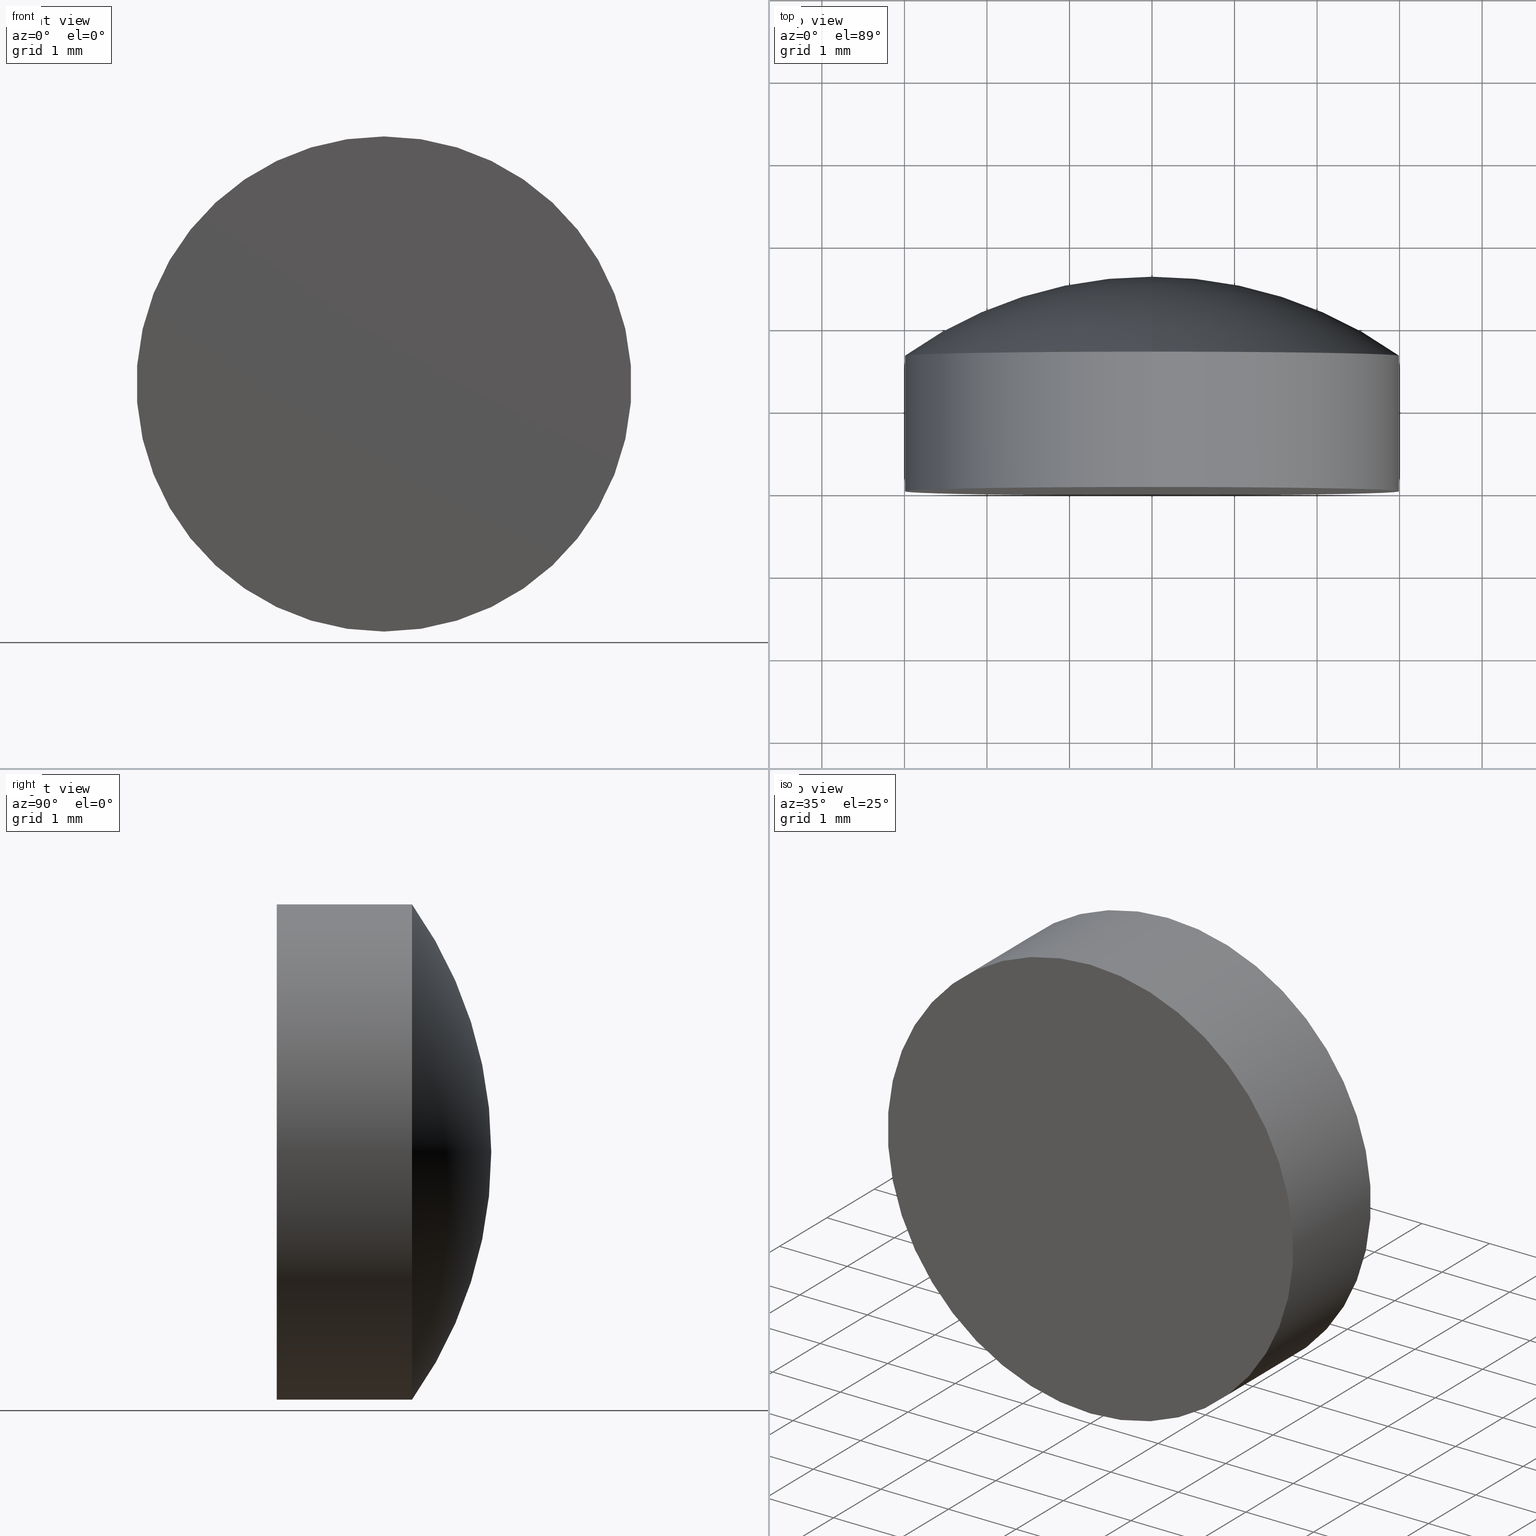
[diagram: canonical four-view strip — front | top / right | iso, engineering-drawing reading convention]
A machine part, canonical four-view strip (front | top / right | iso — engineering-drawing reading convention). The complete STEP part file that produces these views, byte-faithful:
ISO-10303-21;
HEADER;
FILE_DESCRIPTION (( 'STEP AP203' ),
    '1' );
FILE_NAME ('100583.STEP',
    '2024-05-10T01:26:09',
    ( '' ),
    ( '' ),
    'SwSTEP 2.0',
    'SolidWorks 2020',
    '' );
FILE_SCHEMA (( 'CONFIG_CONTROL_DESIGN' ));
ENDSEC;

DATA;
#1 = CYLINDRICAL_SURFACE ( 'NONE', #17, 3.000000000000000000 ) ;
#2 = APPROVAL_STATUS ( 'not_yet_approved' ) ;
#3 = APPROVAL_DATE_TIME ( #140, #40 ) ;
#4 = SECURITY_CLASSIFICATION_LEVEL ( 'unclassified' ) ;
#5 = APPROVAL_ROLE ( '' ) ;
#6 = CIRCLE ( 'NONE', #197, 5.169999999999999929 ) ;
#7 = EDGE_CURVE ( 'NONE', #25, #117, #6, .T. ) ;
#8 = ORIENTED_EDGE ( 'NONE', *, *, #201, .F. ) ;
#9 = CC_DESIGN_APPROVAL ( #158, ( #23 ) ) ;
#10 = EDGE_LOOP ( 'NONE', ( #124, #176, #89 ) ) ;
#11 = CYLINDRICAL_SURFACE ( 'NONE', #157, 3.000000000000000000 ) ;
#12 = CIRCLE ( 'NONE', #115, 3.000000000000000000 ) ;
#13 = DIRECTION ( 'NONE',  ( 0.000000000000000000, 0.000000000000000000, 1.000000000000000000 ) ) ;
#14 = DIRECTION ( 'NONE',  ( -0.000000000000000000, 1.000000000000000000, -0.000000000000000000 ) ) ;
#15 = CARTESIAN_POINT ( 'NONE',  ( -9.796931844589988710E-20, -2.569999938107513593, 0.0007999801944047046226 ) ) ;
#16 = DESIGN_CONTEXT ( 'detailed design', #187, 'design' ) ;
#17 = AXIS2_PLACEMENT_3D ( 'NONE', #184, #150, #151 ) ;
#18 = COORDINATED_UNIVERSAL_TIME_OFFSET ( 8, 0, .AHEAD. ) ;
#19 = APPROVAL_STATUS ( 'not_yet_approved' ) ;
#20 = DATE_AND_TIME ( #59, #53 ) ;
#21 = AXIS2_PLACEMENT_3D ( 'NONE', #15, #135, #108 ) ;
#22 = PERSON_AND_ORGANIZATION_ROLE ( 'classification_officer' ) ;
#23 = PRODUCT_DEFINITION_FORMATION_WITH_SPECIFIED_SOURCE ( '�κ�', '', #24, .NOT_KNOWN. ) ;
#24 = PRODUCT ( '100583', '100583', '', ( #171 ) ) ;
#25 = VERTEX_POINT ( 'NONE', #182 ) ;
#26 = TOROIDAL_SURFACE ( 'NONE', #136, -0.0007999801944047046226, 5.169999999999999929 ) ;
#27 = CARTESIAN_POINT ( 'NONE',  ( 0.000000000000000000, -2.569999938107513593, 0.000000000000000000 ) ) ;
#28 = EDGE_CURVE ( 'NONE', #25, #146, #44, .T. ) ;
#29 = CARTESIAN_POINT ( 'NONE',  ( 0.000000000000000000, -2.569999938107513593, -0.0007999801944047046226 ) ) ;
#30 = CARTESIAN_POINT ( 'NONE',  ( 0.000000000000000000, 1.639999999999999458, 0.000000000000000000 ) ) ;
#31 = ORIENTED_EDGE ( 'NONE', *, *, #80, .T. ) ;
#32 = FACE_OUTER_BOUND ( 'NONE', #179, .T. ) ;
#33 =( GEOMETRIC_REPRESENTATION_CONTEXT ( 3 ) GLOBAL_UNCERTAINTY_ASSIGNED_CONTEXT ( ( #70 ) ) GLOBAL_UNIT_ASSIGNED_CONTEXT ( ( #137, #111, #189 ) ) REPRESENTATION_CONTEXT ( 'NONE', 'WORKASPACE' ) );
#34 = PERSON_AND_ORGANIZATION ( #78, #62 ) ;
#35 = VECTOR ( 'NONE', #199, 1000.000000000000000 ) ;
#36 = PERSON_AND_ORGANIZATION ( #78, #62 ) ;
#37 = ADVANCED_FACE ( 'NONE', ( #122 ), #1, .T. ) ;
#38 = DATE_AND_TIME ( #82, #177 ) ;
#39 = COORDINATED_UNIVERSAL_TIME_OFFSET ( 8, 0, .AHEAD. ) ;
#40 = APPROVAL ( #2, 'δָ��' ) ;
#41 = ORIENTED_EDGE ( 'NONE', *, *, #143, .F. ) ;
#42 = ORIENTED_EDGE ( 'NONE', *, *, #201, .T. ) ;
#43 = ORIENTED_EDGE ( 'NONE', *, *, #114, .F. ) ;
#44 = CIRCLE ( 'NONE', #74, 3.000000000000000000 ) ;
#45 = PRODUCT_DEFINITION_SHAPE ( 'NONE', 'NONE',  #109 ) ;
#46 = CARTESIAN_POINT ( 'NONE',  ( 0.000000000000000000, -4.336808689942017736E-16, 0.000000000000000000 ) ) ;
#47 = AXIS2_PLACEMENT_3D ( 'NONE', #46, #138, #105 ) ;
#48 = DIRECTION ( 'NONE',  ( 0.000000000000000000, 0.000000000000000000, 1.000000000000000000 ) ) ;
#49 = DIRECTION ( 'NONE',  ( -0.000000000000000000, 1.000000000000000000, -0.000000000000000000 ) ) ;
#50 = DIRECTION ( 'NONE',  ( 0.000000000000000000, -0.000000000000000000, -1.000000000000000000 ) ) ;
#51 = CARTESIAN_POINT ( 'NONE',  ( 3.673940397442059868E-16, -4.336808689942017736E-16, -3.000000000000000000 ) ) ;
#52 = CARTESIAN_POINT ( 'NONE',  ( 0.000000000000000000, 0.000000000000000000, 0.000000000000000000 ) ) ;
#53 = LOCAL_TIME ( 9, 26, 9.000000000000000000, #55 ) ;
#54 = DATE_AND_TIME ( #126, #191 ) ;
#55 = COORDINATED_UNIVERSAL_TIME_OFFSET ( 8, 0, .AHEAD. ) ;
#56 = ADVANCED_FACE ( 'NONE', ( #32 ), #131, .T. ) ;
#57 = COORDINATED_UNIVERSAL_TIME_OFFSET ( 8, 0, .AHEAD. ) ;
#58 = CC_DESIGN_PERSON_AND_ORGANIZATION_ASSIGNMENT ( #34, #156, ( #24 ) ) ;
#59 = CALENDAR_DATE ( 2024, 10, 5 ) ;
#60 = CC_DESIGN_SECURITY_CLASSIFICATION ( #101, ( #23 ) ) ;
#61 = ORIENTED_EDGE ( 'NONE', *, *, #118, .F. ) ;
#62 = ORGANIZATION ( 'δָ��', 'δָ��', '' ) ;
#63 = LINE ( 'NONE', #154, #128 ) ;
#64 = VERTEX_POINT ( 'NONE', #51 ) ;
#65 = CIRCLE ( 'NONE', #21, 5.169999999999999929 ) ;
#66 = CARTESIAN_POINT ( 'NONE',  ( 0.000000000000000000, -4.336808689942017736E-16, 0.000000000000000000 ) ) ;
#67 = DIRECTION ( 'NONE',  ( 0.000000000000000000, 0.000000000000000000, 1.000000000000000000 ) ) ;
#68 = CARTESIAN_POINT ( 'NONE',  ( 0.000000000000000000, 2.600000000000000089, 0.000000000000000000 ) ) ;
#69 = APPROVAL_STATUS ( 'not_yet_approved' ) ;
#70 = UNCERTAINTY_MEASURE_WITH_UNIT (LENGTH_MEASURE( 1.000000000000000082E-05 ), #137, 'distance_accuracy_value', 'NONE');
#71 = PERSON_AND_ORGANIZATION ( #78, #62 ) ;
#72 = SHAPE_DEFINITION_REPRESENTATION ( #45, #153 ) ;
#73 = ORIENTED_EDGE ( 'NONE', *, *, #28, .F. ) ;
#74 = AXIS2_PLACEMENT_3D ( 'NONE', #107, #14, #48 ) ;
#75 = ADVANCED_FACE ( 'NONE', ( #168 ), #152, .T. ) ;
#76 = DIRECTION ( 'NONE',  ( 0.000000000000000000, 0.000000000000000000, 1.000000000000000000 ) ) ;
#77 = DIRECTION ( 'NONE',  ( -1.000000000000000000, 0.000000000000000000, 0.000000000000000000 ) ) ;
#78 = PERSON ( 'δָ��', 'δָ��', 'δָ��', ('δָ��'), ('δָ��'), ('δָ��') ) ;
#79 = DIRECTION ( 'NONE',  ( -0.000000000000000000, 1.000000000000000000, -0.000000000000000000 ) ) ;
#80 = EDGE_CURVE ( 'NONE', #88, #25, #63, .T. ) ;
#81 = CALENDAR_DATE ( 2024, 10, 5 ) ;
#82 = CALENDAR_DATE ( 2024, 10, 5 ) ;
#83 = MANIFOLD_SOLID_BREP ( '��ת1', #112 ) ;
#84 = APPROVAL_DATE_TIME ( #54, #158 ) ;
#85 = APPROVAL_DATE_TIME ( #38, #102 ) ;
#86 = LOCAL_TIME ( 9, 26, 9.000000000000000000, #18 ) ;
#87 = AXIS2_PLACEMENT_3D ( 'NONE', #66, #49, #165 ) ;
#88 = VERTEX_POINT ( 'NONE', #120 ) ;
#89 = ORIENTED_EDGE ( 'NONE', *, *, #7, .F. ) ;
#90 = ADVANCED_FACE ( 'NONE', ( #134 ), #11, .T. ) ;
#91 = DIRECTION ( 'NONE',  ( -0.000000000000000000, 1.000000000000000000, -0.000000000000000000 ) ) ;
#92 = CC_DESIGN_APPROVAL ( #102, ( #101 ) ) ;
#93 = CARTESIAN_POINT ( 'NONE',  ( 3.673940397442059868E-16, 2.600000000000000089, -3.000000000000000000 ) ) ;
#94 = DIRECTION ( 'NONE',  ( -0.000000000000000000, 1.000000000000000000, -0.000000000000000000 ) ) ;
#95 = DIRECTION ( 'NONE',  ( 0.000000000000000000, 0.000000000000000000, 1.000000000000000000 ) ) ;
#96 = PRODUCT_RELATED_PRODUCT_CATEGORY ( 'detail', '', ( #24 ) ) ;
#97 = PERSON_AND_ORGANIZATION_ROLE ( 'creator' ) ;
#98 = PERSON_AND_ORGANIZATION ( #78, #62 ) ;
#99 = APPROVAL_ROLE ( '' ) ;
#100 = PERSON_AND_ORGANIZATION_ROLE ( 'creator' ) ;
#101 = SECURITY_CLASSIFICATION ( '', '', #4 ) ;
#102 = APPROVAL ( #69, 'δָ��' ) ;
#103 = ORIENTED_EDGE ( 'NONE', *, *, #181, .T. ) ;
#104 = APPLICATION_CONTEXT ( 'configuration controlled 3d designs of mechanical parts and assemblies' ) ;
#105 = DIRECTION ( 'NONE',  ( 0.000000000000000000, 0.000000000000000000, 1.000000000000000000 ) ) ;
#106 = DIRECTION ( 'NONE',  ( -0.000000000000000000, 1.000000000000000000, -0.000000000000000000 ) ) ;
#107 = CARTESIAN_POINT ( 'NONE',  ( 0.000000000000000000, 1.639999999999999458, 0.000000000000000000 ) ) ;
#108 = DIRECTION ( 'NONE',  ( 1.224646799147353207E-16, 0.000000000000000000, -1.000000000000000000 ) ) ;
#109 = PRODUCT_DEFINITION ( 'δ֪', '', #23, #16 ) ;
#110 = DIRECTION ( 'NONE',  ( 1.000000000000000000, 0.000000000000000000, 0.000000000000000000 ) ) ;
#111 =( NAMED_UNIT ( * ) PLANE_ANGLE_UNIT ( ) SI_UNIT ( $, .RADIAN. ) );
#112 = CLOSED_SHELL ( 'NONE', ( #37, #75, #190, #56, #90 ) ) ;
#113 = PERSON_AND_ORGANIZATION ( #78, #62 ) ;
#114 = EDGE_CURVE ( 'NONE', #64, #146, #166, .T. ) ;
#115 = AXIS2_PLACEMENT_3D ( 'NONE', #30, #91, #13 ) ;
#116 = DATE_TIME_ROLE ( 'creation_date' ) ;
#117 = VERTEX_POINT ( 'NONE', #68 ) ;
#118 = EDGE_CURVE ( 'NONE', #64, #88, #119, .T. ) ;
#119 = CIRCLE ( 'NONE', #47, 3.000000000000000000 ) ;
#120 = CARTESIAN_POINT ( 'NONE',  ( 0.000000000000000000, -4.336808689942017736E-16, 3.000000000000000000 ) ) ;
#121 = ORIENTED_EDGE ( 'NONE', *, *, #80, .F. ) ;
#122 = FACE_OUTER_BOUND ( 'NONE', #169, .T. ) ;
#123 = CARTESIAN_POINT ( 'NONE',  ( 0.000000000000000000, -2.569999938107513593, 0.000000000000000000 ) ) ;
#124 = ORIENTED_EDGE ( 'NONE', *, *, #28, .T. ) ;
#125 = APPROVAL_ROLE ( '' ) ;
#126 = CALENDAR_DATE ( 2024, 10, 5 ) ;
#127 = CC_DESIGN_PERSON_AND_ORGANIZATION_ASSIGNMENT ( #161, #100, ( #23 ) ) ;
#128 = VECTOR ( 'NONE', #186, 1000.000000000000000 ) ;
#129 = ORIENTED_EDGE ( 'NONE', *, *, #118, .T. ) ;
#130 = AXIS2_PLACEMENT_3D ( 'NONE', #52, #159, #110 ) ;
#131 = PLANE ( 'NONE',  #180 ) ;
#132 = APPROVAL_PERSON_ORGANIZATION ( #113, #158, #99 ) ;
#133 = CC_DESIGN_DATE_AND_TIME_ASSIGNMENT ( #20, #193, ( #101 ) ) ;
#134 = FACE_OUTER_BOUND ( 'NONE', #163, .T. ) ;
#135 = DIRECTION ( 'NONE',  ( 1.000000000000000000, 0.000000000000000000, 1.224646799147353207E-16 ) ) ;
#136 = AXIS2_PLACEMENT_3D ( 'NONE', #27, #94, #67 ) ;
#137 =( LENGTH_UNIT ( ) NAMED_UNIT ( * ) SI_UNIT ( .MILLI., .METRE. ) );
#138 = DIRECTION ( 'NONE',  ( -0.000000000000000000, 1.000000000000000000, -0.000000000000000000 ) ) ;
#139 = COORDINATED_UNIVERSAL_TIME_OFFSET ( 8, 0, .AHEAD. ) ;
#140 = DATE_AND_TIME ( #81, #86 ) ;
#141 = APPLICATION_PROTOCOL_DEFINITION ( 'international standard', 'config_control_design', 1994, #187 ) ;
#142 = PERSON_AND_ORGANIZATION ( #78, #62 ) ;
#143 = EDGE_CURVE ( 'NONE', #146, #117, #65, .T. ) ;
#144 = AXIS2_PLACEMENT_3D ( 'NONE', #123, #79, #95 ) ;
#145 = ORIENTED_EDGE ( 'NONE', *, *, #114, .T. ) ;
#146 = VERTEX_POINT ( 'NONE', #200 ) ;
#147 = CARTESIAN_POINT ( 'NONE',  ( 0.000000000000000000, -1.836970198721029688E-16, 0.000000000000000000 ) ) ;
#148 = CC_DESIGN_PERSON_AND_ORGANIZATION_ASSIGNMENT ( #142, #175, ( #23 ) ) ;
#149 = DIRECTION ( 'NONE',  ( 0.000000000000000000, -1.000000000000000000, 0.000000000000000000 ) ) ;
#150 = DIRECTION ( 'NONE',  ( -0.000000000000000000, 1.000000000000000000, -0.000000000000000000 ) ) ;
#151 = DIRECTION ( 'NONE',  ( 0.000000000000000000, 0.000000000000000000, 1.000000000000000000 ) ) ;
#152 = TOROIDAL_SURFACE ( 'NONE', #144, -0.0007999801944047046226, 5.169999999999999929 ) ;
#153 = ADVANCED_BREP_SHAPE_REPRESENTATION ( '100583', ( #83, #130 ), #33 ) ;
#154 = CARTESIAN_POINT ( 'NONE',  ( 0.000000000000000000, 2.600000000000000089, 3.000000000000000000 ) ) ;
#155 = APPLICATION_PROTOCOL_DEFINITION ( 'international standard', 'config_control_design', 1994, #104 ) ;
#156 = PERSON_AND_ORGANIZATION_ROLE ( 'design_owner' ) ;
#157 = AXIS2_PLACEMENT_3D ( 'NONE', #188, #106, #76 ) ;
#158 = APPROVAL ( #19, 'δָ��' ) ;
#159 = DIRECTION ( 'NONE',  ( 0.000000000000000000, 0.000000000000000000, 1.000000000000000000 ) ) ;
#160 = DATE_AND_TIME ( #192, #185 ) ;
#161 = PERSON_AND_ORGANIZATION ( #78, #62 ) ;
#162 = APPROVAL_PERSON_ORGANIZATION ( #36, #102, #5 ) ;
#163 = EDGE_LOOP ( 'NONE', ( #43, #129, #31, #8 ) ) ;
#164 = CC_DESIGN_PERSON_AND_ORGANIZATION_ASSIGNMENT ( #71, #97, ( #109 ) ) ;
#165 = DIRECTION ( 'NONE',  ( 0.000000000000000000, 0.000000000000000000, 1.000000000000000000 ) ) ;
#166 = LINE ( 'NONE', #93, #35 ) ;
#167 = FACE_OUTER_BOUND ( 'NONE', #178, .T. ) ;
#168 = FACE_OUTER_BOUND ( 'NONE', #10, .T. ) ;
#169 = EDGE_LOOP ( 'NONE', ( #103, #145, #73, #121 ) ) ;
#170 = APPROVAL_PERSON_ORGANIZATION ( #98, #40, #125 ) ;
#171 = MECHANICAL_CONTEXT ( 'NONE', #104, 'mechanical' ) ;
#172 = CC_DESIGN_PERSON_AND_ORGANIZATION_ASSIGNMENT ( #174, #22, ( #101 ) ) ;
#173 = CIRCLE ( 'NONE', #87, 3.000000000000000000 ) ;
#174 = PERSON_AND_ORGANIZATION ( #78, #62 ) ;
#175 = PERSON_AND_ORGANIZATION_ROLE ( 'design_supplier' ) ;
#176 = ORIENTED_EDGE ( 'NONE', *, *, #143, .T. ) ;
#177 = LOCAL_TIME ( 9, 26, 9.000000000000000000, #39 ) ;
#178 = EDGE_LOOP ( 'NONE', ( #41, #42, #195 ) ) ;
#179 = EDGE_LOOP ( 'NONE', ( #196, #61 ) ) ;
#180 = AXIS2_PLACEMENT_3D ( 'NONE', #147, #149, #50 ) ;
#181 = EDGE_CURVE ( 'NONE', #88, #64, #173, .T. ) ;
#182 = CARTESIAN_POINT ( 'NONE',  ( 0.000000000000000000, 1.639999999999999236, 3.000000000000000444 ) ) ;
#183 = DIRECTION ( 'NONE',  ( 0.000000000000000000, 0.000000000000000000, 1.000000000000000000 ) ) ;
#184 = CARTESIAN_POINT ( 'NONE',  ( 0.000000000000000000, 2.600000000000000089, 0.000000000000000000 ) ) ;
#185 = LOCAL_TIME ( 9, 26, 9.000000000000000000, #139 ) ;
#186 = DIRECTION ( 'NONE',  ( -0.000000000000000000, 1.000000000000000000, -0.000000000000000000 ) ) ;
#187 = APPLICATION_CONTEXT ( 'configuration controlled 3d designs of mechanical parts and assemblies' ) ;
#188 = CARTESIAN_POINT ( 'NONE',  ( 0.000000000000000000, 2.600000000000000089, 0.000000000000000000 ) ) ;
#189 =( NAMED_UNIT ( * ) SI_UNIT ( $, .STERADIAN. ) SOLID_ANGLE_UNIT ( ) );
#190 = ADVANCED_FACE ( 'NONE', ( #167 ), #26, .T. ) ;
#191 = LOCAL_TIME ( 9, 26, 9.000000000000000000, #57 ) ;
#192 = CALENDAR_DATE ( 2024, 10, 5 ) ;
#193 = DATE_TIME_ROLE ( 'classification_date' ) ;
#194 = CC_DESIGN_DATE_AND_TIME_ASSIGNMENT ( #160, #116, ( #109 ) ) ;
#195 = ORIENTED_EDGE ( 'NONE', *, *, #7, .T. ) ;
#196 = ORIENTED_EDGE ( 'NONE', *, *, #181, .F. ) ;
#197 = AXIS2_PLACEMENT_3D ( 'NONE', #29, #77, #183 ) ;
#198 = CC_DESIGN_APPROVAL ( #40, ( #109 ) ) ;
#199 = DIRECTION ( 'NONE',  ( -0.000000000000000000, 1.000000000000000000, -0.000000000000000000 ) ) ;
#200 = CARTESIAN_POINT ( 'NONE',  ( 3.673940397442060361E-16, 1.639999999999999236, -3.000000000000000444 ) ) ;
#201 = EDGE_CURVE ( 'NONE', #146, #25, #12, .T. ) ;
ENDSEC;
END-ISO-10303-21;
